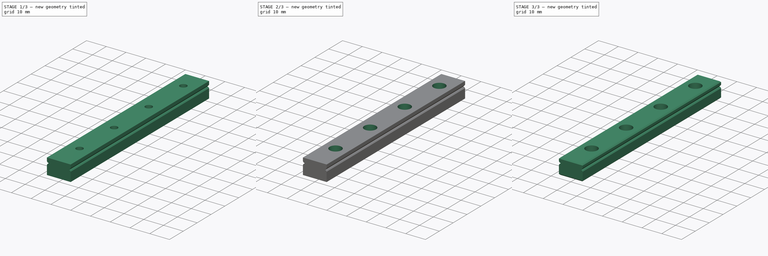
[diagram: build sequence overview — one tinted view per stage of 3, left to right]
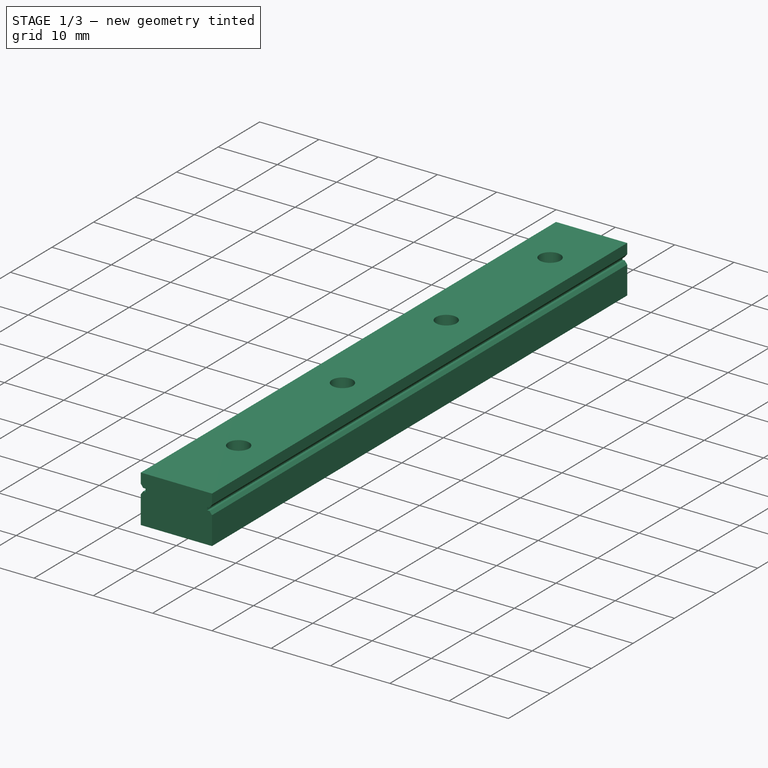
[diagram: stage 1 of 3 — iso view after this stage's code; geometry added in this stage tinted green]
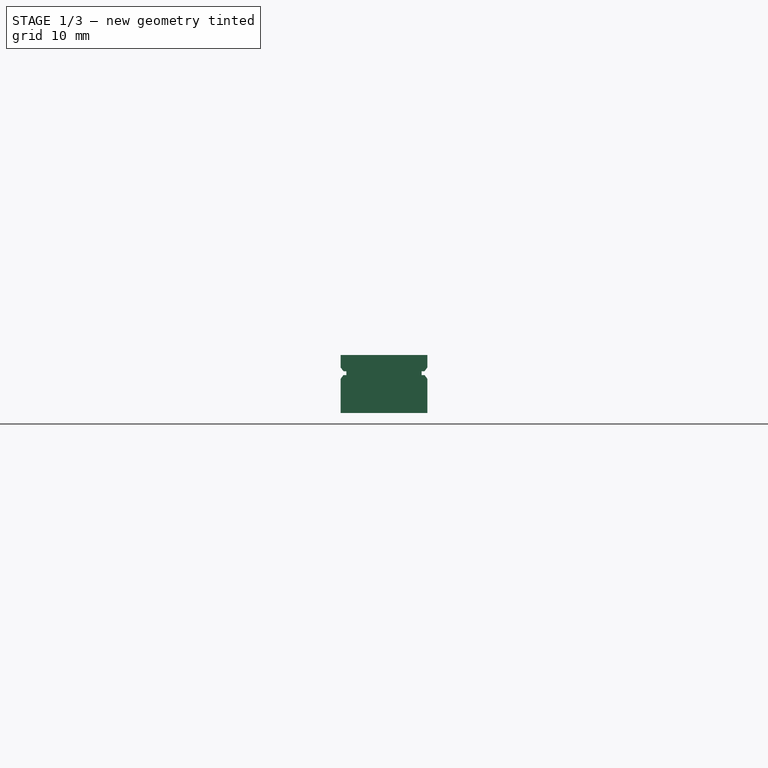
[diagram: stage 1 of 3 — front view after this stage's code; geometry added in this stage tinted green]
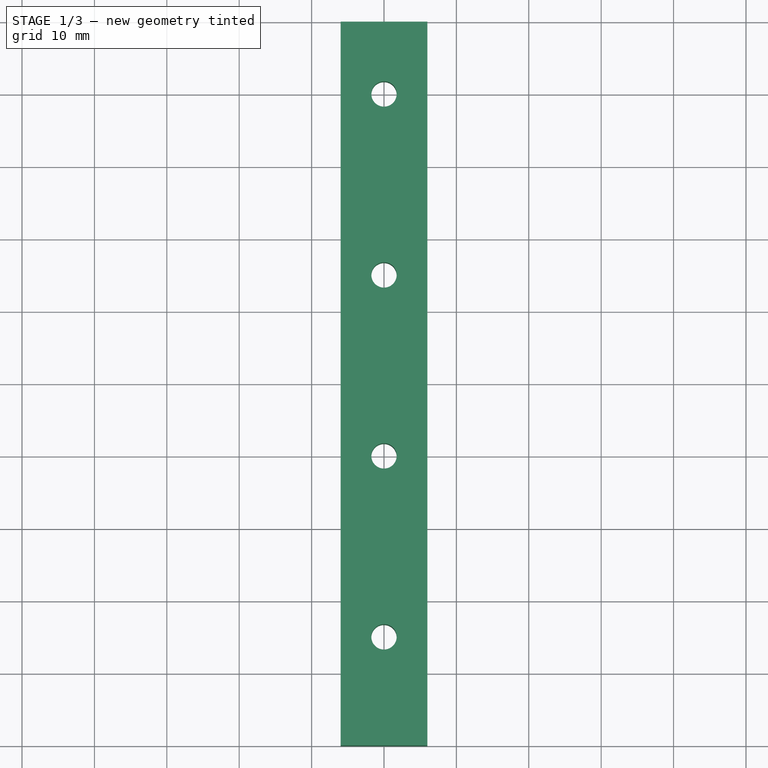
[diagram: stage 1 of 3 — top view after this stage's code; geometry added in this stage tinted green]
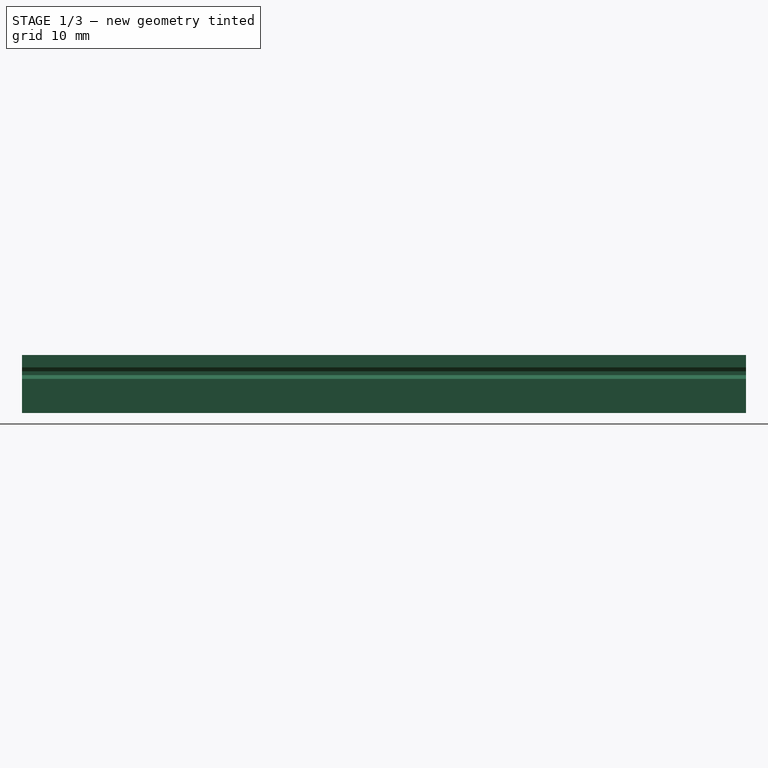
[diagram: stage 1 of 3 — right view after this stage's code; geometry added in this stage tinted green]
FCSTD DOCUMENT  (FreeCAD 0.19R)
Label: LinearSlide-MGN12-Rail
Comment: Dimensions taken from http://motioncontrolsystems.hiwin.us/Asset/MG-Series-Catalog.pdf
License: Creative Commons Attribution
LicenseURL: http://creativecommons.org/licenses/by/3.0/
objects: Sketcher::SketchObject×3, PartDesign::Pocket×2, PartDesign::Chamfer×2, Spreadsheet::Sheet×1, PartDesign::Pad×1, PartDesign::Body×1
note: 14 computed .brp shape members not serialized (recipe doc carries the construction recipe); baked Part::Feature solids carry a one-line shape summary decoded from their .brp

FEATURE [Spreadsheet::Sheet] Spreadsheet  label="Dimensions"
  cells = A2=Taken from the datasheet at http://motioncontrolsystems.hiwin.us/Asset/MG-Series-Catalog.pdf; A3=H; B3(Assembly_H)=13; A4=H1; B4(Assembly_H1)=3; A5=HR; B5(Rail_HR)=8; A6=N; B6(Assembly_N)=7.5; A7=W; B7(Block_W)=27; A8=WR; B8(Rail_WR)=12; A9=B; B9(Block_B)=20; A10=B1; B10(Block_B1)=3.5; A11=L; B11(Block_L)=34.7; A12=L1; B12(Block_L1)=21.7; A13=C; B13(Block_C)=15; A14=D; B14(Rail_D)=6; A15=d; B15(Rail_d)=3.5; A16=h; B16(Rail_h)=4.5; A17=E; B17(Rail_E)=10; A18=P; B18(Rail_P)=25; A19=RailGuideHeight; B19(RailGuideHeight)=1.6; A20=RailGuideWidth; B20(RailGuideWidth)==RailGuideHeight / 2; A21=RailLength; B21(RailLength)=100
FEATURE [Sketcher::SketchObject] Sketch  label="RailCrossSection"
  FullyConstrained = true
  MapMode = 5
  Placement = pos=(0,0,0) rot=(1,0,0;1.5708rad)
  Support = -> [XZ_Plane]
  expr: Constraints[29] = <<Dimensions>>.RailGuideWidth / 2
  expr: Constraints[30] = <<Dimensions>>.RailGuideWidth / 2
  expr: Constraints[28] = <<Dimensions>>.RailGuideHeight / 3
  expr: Constraints[25] = <<Dimensions>>.RailGuideHeight / 3
  expr: Constraints[27] = <<Dimensions>>.RailGuideHeight / 3
  expr: Constraints[16] = (<<Dimensions>>.Rail_HR - <<Dimensions>>.Assembly_H1 - <<Dimensions>>.RailGuideHeight) / 2
  expr: Constraints[15] = <<Dimensions>>.Rail_WR
  expr: Constraints[11] = <<Dimensions>>.Rail_HR
  sketch-geometry (16):
    g0: LineSegment StartX=-6 StartY=0 StartZ=0 EndX=-6 EndY=4.7 EndZ=0
    g1: LineSegment StartX=-6 StartY=6.3 StartZ=0 EndX=-6 EndY=8 EndZ=0
    g2: LineSegment StartX=-6 StartY=8 StartZ=0 EndX=6 EndY=8 EndZ=0
    g3: LineSegment StartX=6 StartY=8 StartZ=0 EndX=6 EndY=6.3 EndZ=0
    g4: LineSegment StartX=6 StartY=6.3 StartZ=0 EndX=5.6 EndY=5.76667 EndZ=0
    g5: LineSegment StartX=5.6 StartY=5.23333 StartZ=0 EndX=6 EndY=4.7 EndZ=0
    g6: LineSegment StartX=6 StartY=4.7 StartZ=0 EndX=6 EndY=0 EndZ=0
    g7: LineSegment StartX=6 StartY=0 StartZ=0 EndX=-6 EndY=0 EndZ=0
    g8: LineSegment StartX=-6 StartY=6.3 StartZ=0 EndX=-5.6 EndY=5.76667 EndZ=0
    g9: LineSegment StartX=-5.6 StartY=5.76667 StartZ=0 EndX=-5.2 EndY=5.76667 EndZ=0
    g10: LineSegment StartX=-5.2 StartY=5.76667 StartZ=0 EndX=-5.2 EndY=5.23333 EndZ=0
    g11: LineSegment StartX=-5.2 StartY=5.23333 StartZ=0 EndX=-5.6 EndY=5.23333 EndZ=0
    g12: LineSegment StartX=-5.6 StartY=5.23333 StartZ=0 EndX=-6 EndY=4.7 EndZ=0
    g13: LineSegment StartX=5.6 StartY=5.23333 StartZ=0 EndX=5.2 EndY=5.23333 EndZ=0
    g14: LineSegment StartX=5.2 StartY=5.23333 StartZ=0 EndX=5.2 EndY=5.76667 EndZ=0
    g15: LineSegment StartX=5.2 StartY=5.76667 StartZ=0 EndX=5.6 EndY=5.76667 EndZ=0
  constraints (42):
    c: PointOnObject(g0,g-1)
    c: Vertical(g0)
    c: Vertical(g1)
    c: Coincident(g1,g2)
    c: Horizontal(g2)
    c: Coincident(g2,g3)
    c: Coincident(g3,g4)
    c: Coincident(g5,g6)
    c: Coincident(g6,g7)
    c: Coincident(g7,g0)
    c: Symmetric(g0,g6,g-2)
    c: DistanceY(g0,g1) = 8
    c: Symmetric(g3,g1,g-2)
    c: Vertical(g3)
    c: Vertical(g1,g0)
    c: DistanceX(g2,g2) = 12
    c: DistanceY(g3,g3) = 1.7
    c: Coincident(g8,g9)
    c: Horizontal(g9)
    c: Coincident(g9,g10)
    c: Vertical(g10)
    c: Coincident(g10,g11)
    c: Horizontal(g11)
    c: Coincident(g11,g12)
    c: Coincident(g12,g0)
    c: DistanceY(g0,g11) = 0.533333
    c: Vertical(g8,g11)
    c: DistanceY(g8,g1) = 0.533333
    c: DistanceY(g10,g10) = 0.533333
    c: DistanceX(g0,g11) = 0.4
    c: DistanceX(g11,g11) = 0.4
    c: Coincident(g8,g1)
    c: Coincident(g5,g13)
    c: Coincident(g13,g14)
    c: Vertical(g14)
    c: Coincident(g14,g15)
    c: Coincident(g15,g4)
    c: Horizontal(g15)
    c: Symmetric(g11,g5,g-2)
    c: Symmetric(g10,g13,g-2)
    c: Symmetric(g4,g8,g-2)
    c: Symmetric(g5,g0,g-2)
FEATURE [PartDesign::Pad] Pad
  Direction = (1,1,1)
  Length = 100
  Length2 = 100
  Placement = pos=(0,0,0) rot=(1,0,0;1.5708rad)
  Profile = -> Sketch
  Type = 0
  expr: Length = <<Dimensions>>.RailLength
FEATURE [Sketcher::SketchObject] Sketch001  label="MountingHole"
  FullyConstrained = true
  MapMode = 5
  Placement = pos=(0,5.3e-15,8) rot=(0,0,1;3.14159rad)
  Support = -> [Pad]
  expr: Constraints[11] = <<Dimensions>>.Rail_P
  expr: Constraints[8] = <<Dimensions>>.Rail_P
  expr: Constraints[5] = <<Dimensions>>.Rail_P
  expr: Constraints[2] = <<Dimensions>>.Rail_E
  expr: Constraints[1] = <<Dimensions>>.Rail_d
  sketch-geometry (4):
    g0: Circle CenterX=0 CenterY=10 CenterZ=0 NormalX=0 NormalY=0 NormalZ=1 AngleXU=0 Radius=1.75
    g1: Circle CenterX=0 CenterY=35 CenterZ=0 NormalX=0 NormalY=0 NormalZ=1 AngleXU=0 Radius=1.75
    g2: Circle CenterX=0 CenterY=60 CenterZ=0 NormalX=0 NormalY=0 NormalZ=1 AngleXU=0 Radius=1.75
    g3: Circle CenterX=0 CenterY=85 CenterZ=0 NormalX=0 NormalY=0 NormalZ=1 AngleXU=0 Radius=1.75
  constraints (12):
    c: PointOnObject(g0,g-2)
    c: Diameter(g0) = 3.5
    c: DistanceY(g-1,g0) = 10
    c: PointOnObject(g1,g-2)
    c: Equal(g1,g0)
    c: DistanceY(g0,g1) = 25
    c: PointOnObject(g2,g-2)
    c: Equal(g2,g0)
    c: DistanceY(g1,g2) = 25
    c: PointOnObject(g3,g-2)
    c: Equal(g3,g0)
    c: DistanceY(g2,g3) = 25
FEATURE [PartDesign::Pocket] Pocket
  BaseFeature = -> Pad
  Length = 5
  Length2 = 100
  Placement = pos=(0,0,0) rot=(1,0,0;1.5708rad)
  Profile = -> Sketch001
  Type = 1
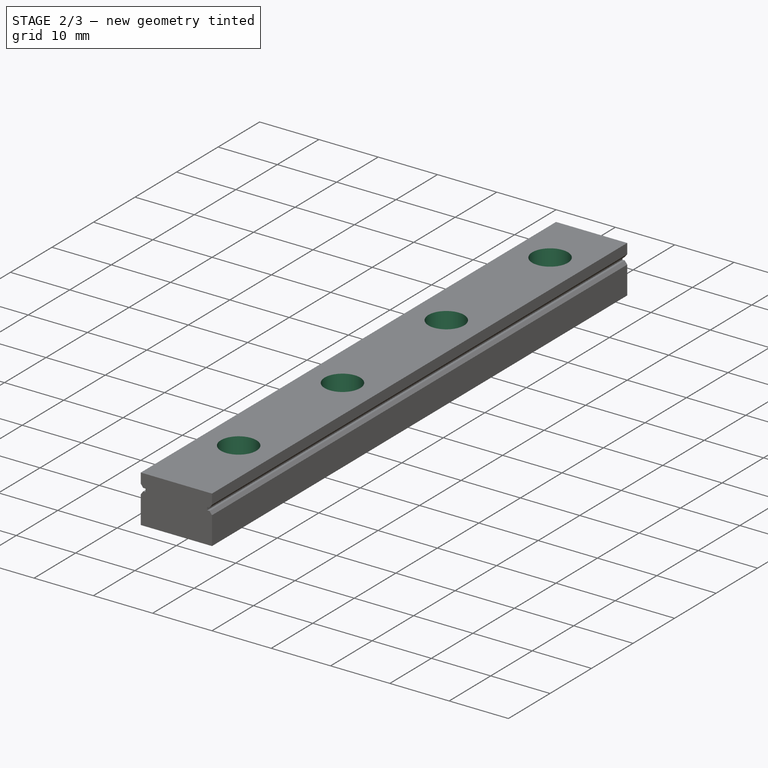
[diagram: stage 2 of 3 — iso view after this stage's code; geometry added in this stage tinted green]
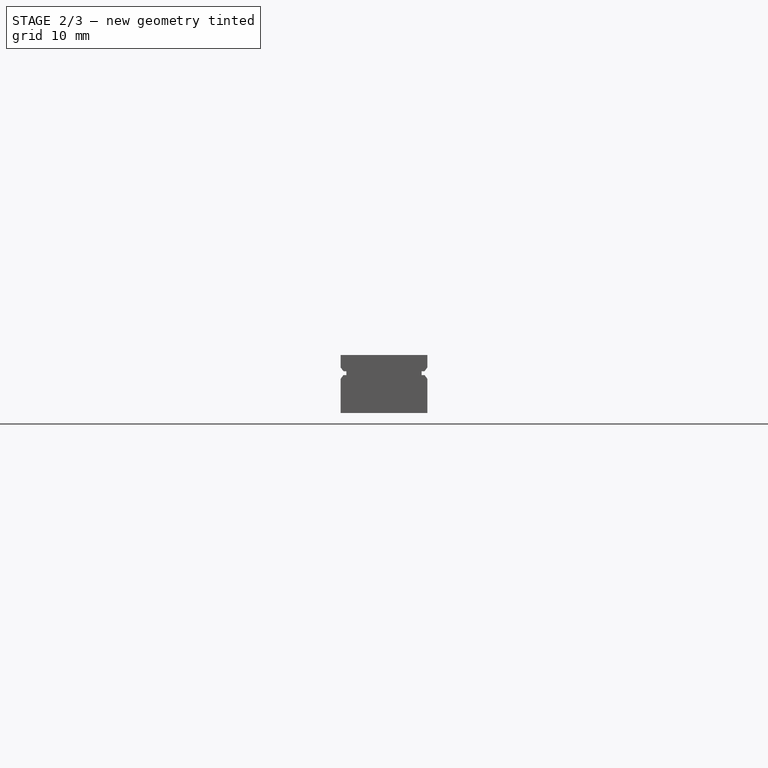
[diagram: stage 2 of 3 — front view after this stage's code; geometry added in this stage tinted green]
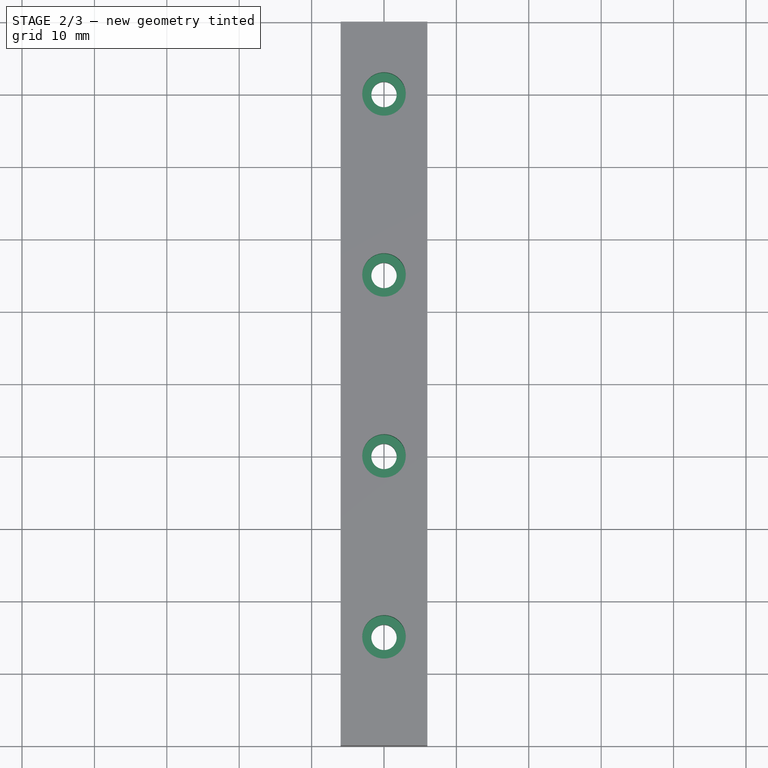
[diagram: stage 2 of 3 — top view after this stage's code; geometry added in this stage tinted green]
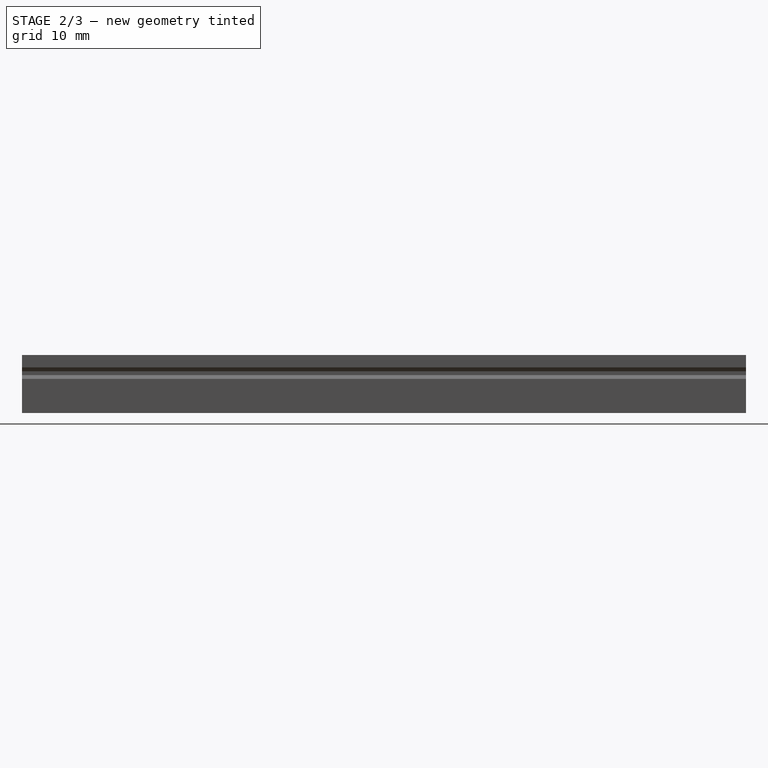
[diagram: stage 2 of 3 — right view after this stage's code; geometry added in this stage tinted green]
FEATURE [Sketcher::SketchObject] Sketch002  label="MountingHoleCountersinks"
  FullyConstrained = true
  MapMode = 5
  Placement = pos=(0,8.9e-15,8) rot=(0,0,1;3.14159rad)
  Support = -> [Pocket]
  expr: Constraints[11] = <<Dimensions>>.Rail_P
  expr: Constraints[10] = <<Dimensions>>.Rail_P
  expr: Constraints[9] = <<Dimensions>>.Rail_P
  expr: Constraints[8] = <<Dimensions>>.Rail_E
  expr: Constraints[7] = <<Dimensions>>.Rail_D
  sketch-geometry (4):
    g0: Circle CenterX=0 CenterY=10 CenterZ=0 NormalX=0 NormalY=0 NormalZ=1 AngleXU=0 Radius=3
    g1: Circle CenterX=0 CenterY=35 CenterZ=0 NormalX=0 NormalY=0 NormalZ=1 AngleXU=0 Radius=3
    g2: Circle CenterX=0 CenterY=60 CenterZ=0 NormalX=0 NormalY=0 NormalZ=1 AngleXU=0 Radius=3
    g3: Circle CenterX=0 CenterY=85 CenterZ=0 NormalX=0 NormalY=0 NormalZ=1 AngleXU=0 Radius=3
  constraints (12):
    c: PointOnObject(g0,g-2)
    c: PointOnObject(g1,g-2)
    c: PointOnObject(g2,g-2)
    c: PointOnObject(g3,g-2)
    c: Equal(g3,g2)
    c: Equal(g2,g1)
    c: Equal(g1,g0)
    c: Diameter(g0) = 6
    c: DistanceY(g-1,g0) = 10
    c: DistanceY(g0,g1) = 25
    c: DistanceY(g1,g2) = 25
    c: DistanceY(g2,g3) = 25
FEATURE [PartDesign::Pocket] Pocket001
  BaseFeature = -> Pocket
  Length = 4.5
  Length2 = 100
  Placement = pos=(0,0,0) rot=(1,0,0;1.5708rad)
  Profile = -> Sketch002
  Type = 0
  expr: Length = <<Dimensions>>.Rail_h
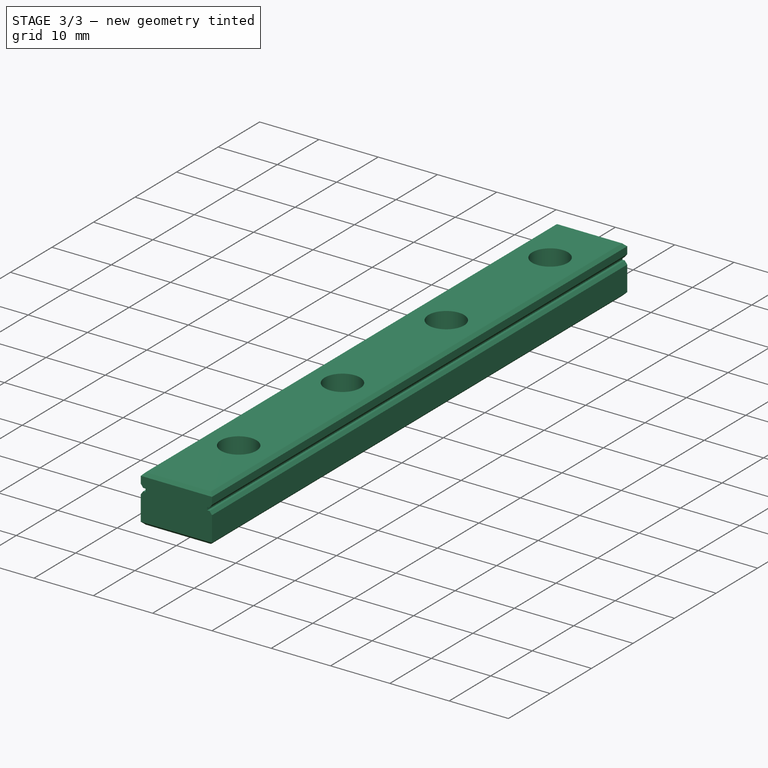
[diagram: stage 3 of 3 — iso view after this stage's code; geometry added in this stage tinted green]
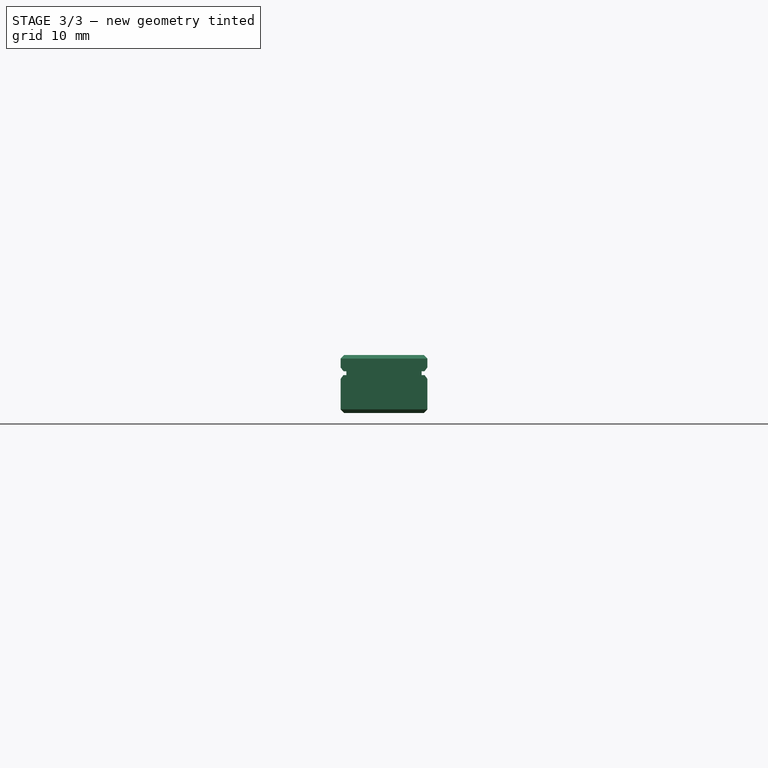
[diagram: stage 3 of 3 — front view after this stage's code; geometry added in this stage tinted green]
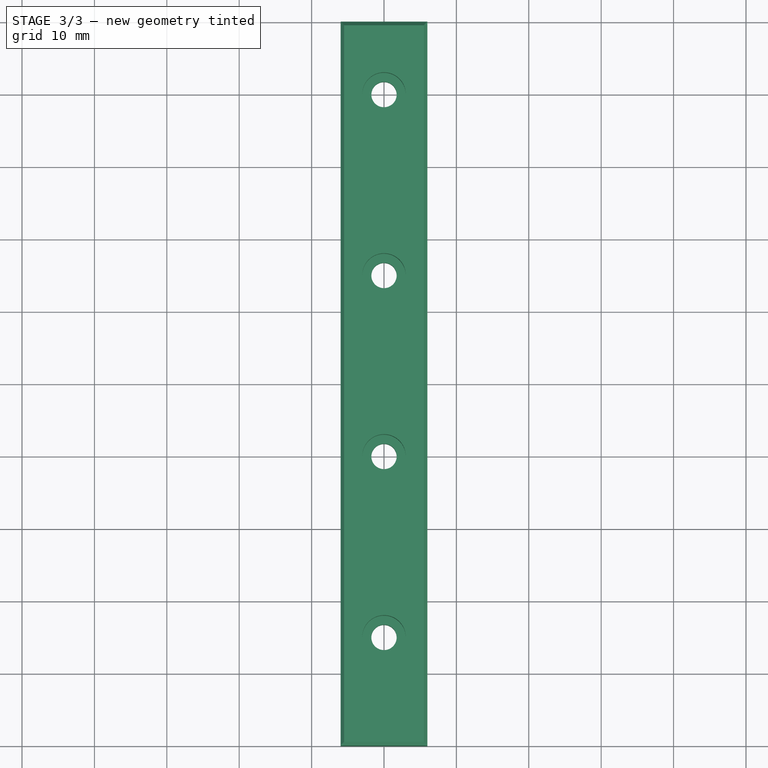
[diagram: stage 3 of 3 — top view after this stage's code; geometry added in this stage tinted green]
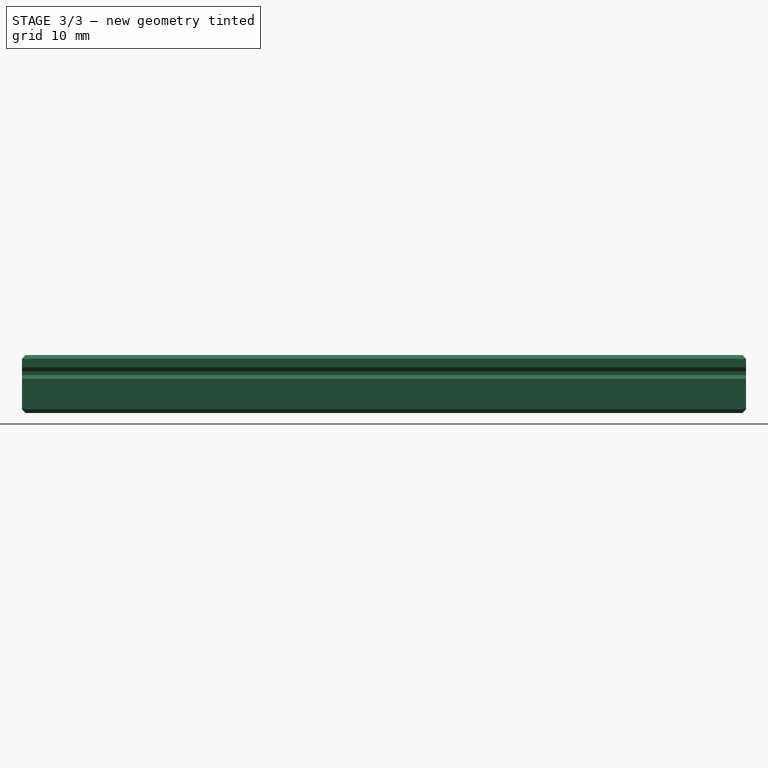
[diagram: stage 3 of 3 — right view after this stage's code; geometry added in this stage tinted green]
FEATURE [PartDesign::Chamfer] Chamfer
  Angle = 45
  Base = -> Pocket001 [Edge49,Edge50,Edge8,Edge38]
  BaseFeature = -> Pocket001
  ChamferType = 0
  FlipDirection = false
  Placement = pos=(0,0,0) rot=(1,0,0;1.5708rad)
  Size = 0.5
  Size2 = 1
  SupportTransform = false
FEATURE [PartDesign::Chamfer] Chamfer001
  Angle = 45
  Base = -> Chamfer [Edge28,Edge41,Edge20,Edge7]
  BaseFeature = -> Chamfer
  ChamferType = 0
  FlipDirection = false
  Placement = pos=(0,0,0) rot=(1,0,0;1.5708rad)
  Size = 0.5
  Size2 = 1
  SupportTransform = false
FEATURE [PartDesign::Body] Body
  Group = -> [Sketch,Pad,Sketch001,Pocket,Sketch002,Pocket001,Chamfer,Chamfer001]
  Origin = -> Origin
  Tip = -> Chamfer001
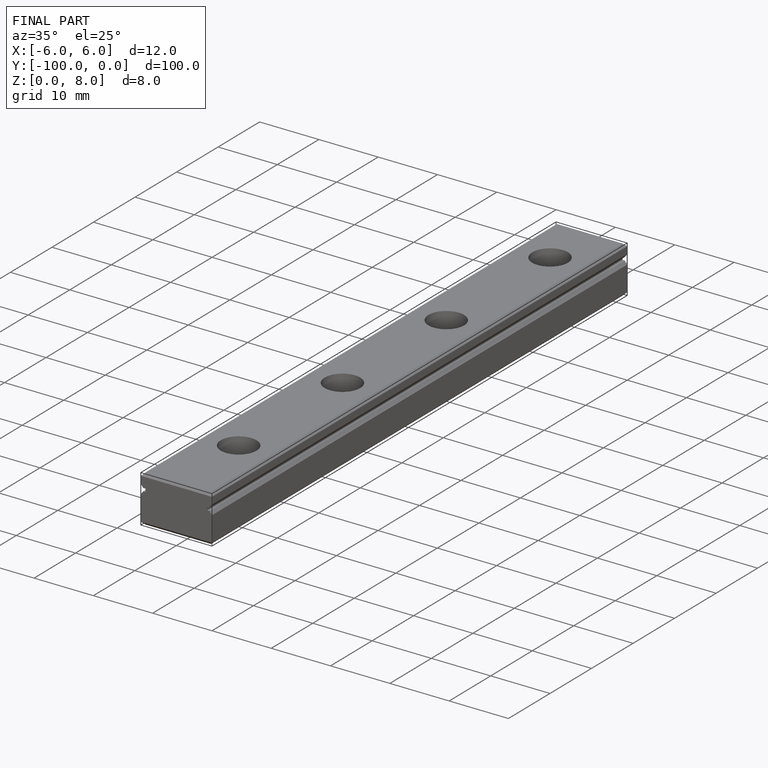
[diagram: finished part — iso view with bounding-box wireframe]
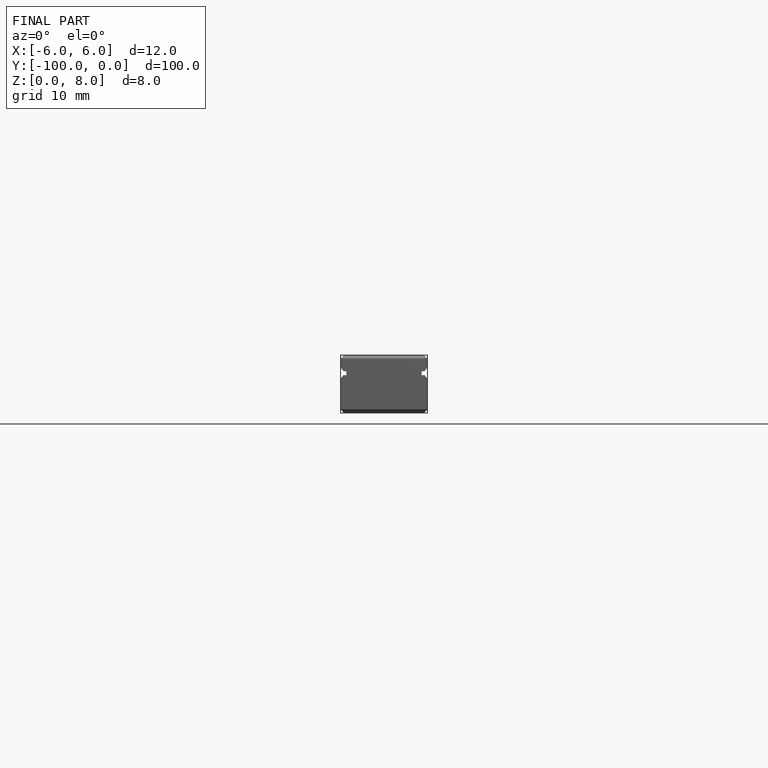
[diagram: finished part — front view with bounding-box wireframe]
